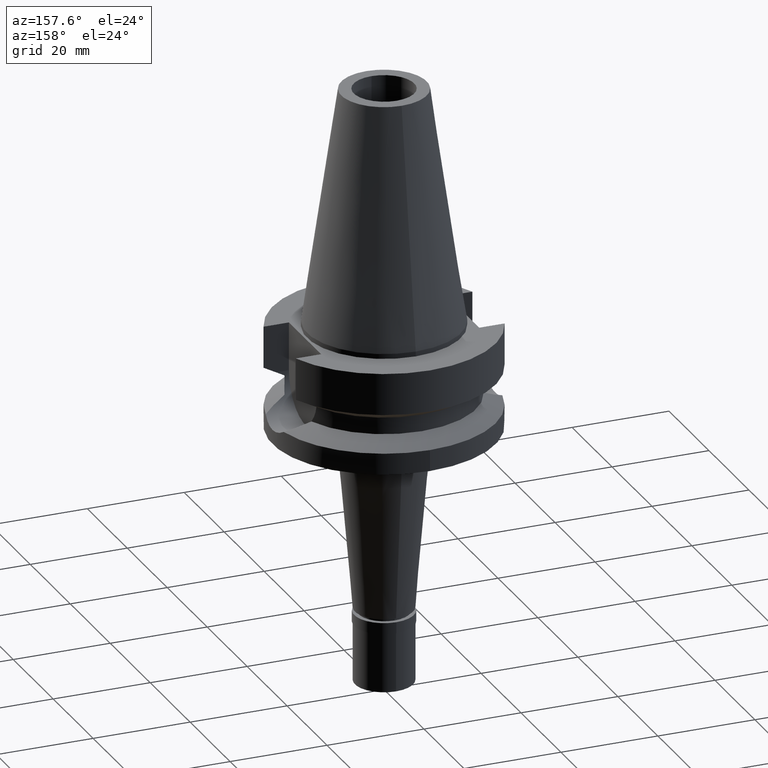
[diagram: clean part render]
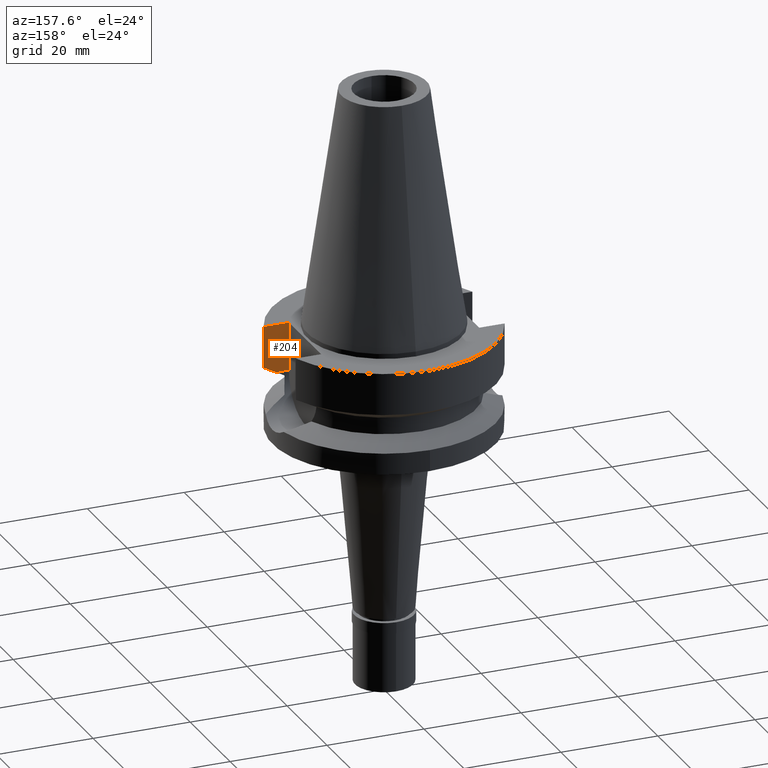
[diagram: same view with one face highlighted and labeled with its STEP entity id]
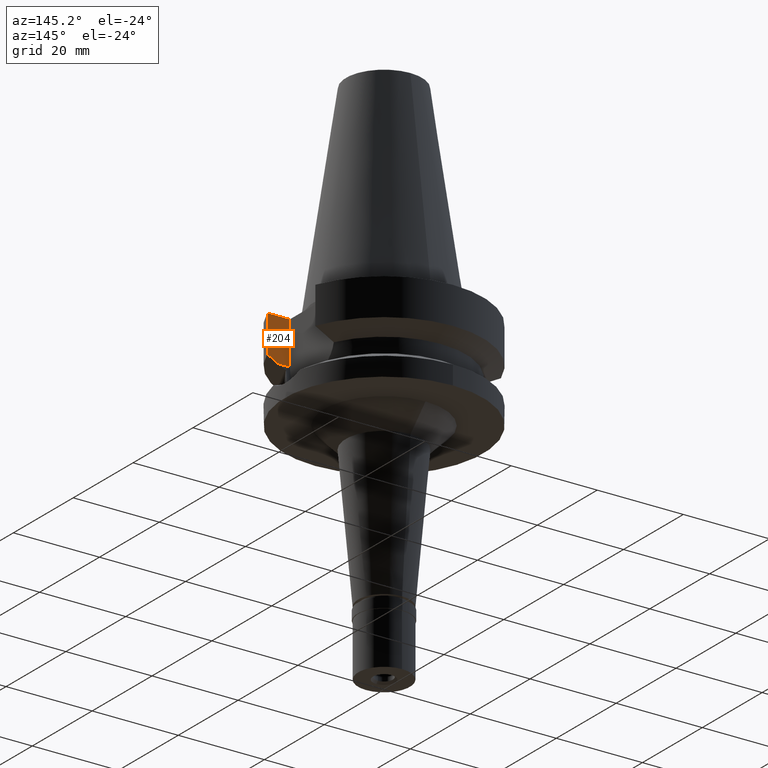
[diagram: same view with one face highlighted and labeled with its STEP entity id]
A machine part, auxiliary view. The second image highlights one B-rep face of the part: STEP entity #204.
A second angle (auxiliary view) of the same face is appended — the face is thin or edge-on in the first view.
In plain terms, the highlighted planar face has unit normal (0, -1, 0).
Its self-contained STEP definition (entity closure, byte-faithful):
#4 = VERTEX_POINT ( 'NONE', #1086 ) ;
#102 = VERTEX_POINT ( 'NONE', #611 ) ;
#204 = ADVANCED_FACE ( 'NONE', ( #1551 ), #2470, .F. ) ;
#210 = CARTESIAN_POINT ( 'NONE',  ( 18.96736186693999926, -8.050001277873001015, -10.94999977540000025 ) ) ;
#271 = VERTEX_POINT ( 'NONE', #1796 ) ;
#381 = CARTESIAN_POINT ( 'NONE',  ( 21.54524309446999908, -8.050000000000000711, -1.000000000000000000 ) ) ;
#505 = ORIENTED_EDGE ( 'NONE', *, *, #2167, .T. ) ;
#540 = VECTOR ( 'NONE', #1956, 1000.000000000000114 ) ;
#564 = CARTESIAN_POINT ( 'NONE',  ( 18.96736186693999926, -8.050001277873001015, -10.94999977540000025 ) ) ;
#586 = VECTOR ( 'NONE', #2238, 1000.000000000000000 ) ;
#611 = CARTESIAN_POINT ( 'NONE',  ( 21.54524309446999908, -8.050000000002000888, -9.567208369710998639 ) ) ;
#623 = VECTOR ( 'NONE', #1792, 1000.000000000000114 ) ;
#663 = VECTOR ( 'NONE', #1694, 1000.000000000000000 ) ;
#727 = EDGE_CURVE ( 'NONE', #1423, #102, #1385, .T. ) ;
#763 = CARTESIAN_POINT ( 'NONE',  ( 21.54524309446999908, -8.050000000002000888, -9.567208369710998639 ) ) ;
#901 = AXIS2_PLACEMENT_3D ( 'NONE', #2481, #1979, #2885 ) ;
#989 = CARTESIAN_POINT ( 'NONE',  ( 18.96736186693999926, -8.050001277873001015, -10.94999977540000025 ) ) ;
#1076 = CARTESIAN_POINT ( 'NONE',  ( 16.29999999999999716, -8.050000000000000711, -10.94999999999999929 ) ) ;
#1086 = CARTESIAN_POINT ( 'NONE',  ( 16.29999999999999716, -8.050000000000000711, -10.94999999999999929 ) ) ;
#1125 = EDGE_CURVE ( 'NONE', #1423, #4, #2918, .T. ) ;
#1154 = ORIENTED_EDGE ( 'NONE', *, *, #1982, .T. ) ;
#1385 = B_SPLINE_CURVE_WITH_KNOTS ( 'NONE', 3,
 ( #989, #1634, #2809, #763 ),
 .UNSPECIFIED., .F., .F.,
 ( 4, 4 ),
 ( 0.0000000000000000000, 1.000000000000000000 ),
 .UNSPECIFIED. ) ;
#1423 = VERTEX_POINT ( 'NONE', #564 ) ;
#1551 = FACE_OUTER_BOUND ( 'NONE', #1795, .T. ) ;
#1634 = CARTESIAN_POINT ( 'NONE',  ( 19.78176446227738339, -8.050001299918164932, -10.51717305795229151 ) ) ;
#1694 = DIRECTION ( 'NONE',  ( 1.000000000000000000, -9.347030801892000173E-14, 0.0000000000000000000 ) ) ;
#1767 = LINE ( 'NONE', #381, #540 ) ;
#1792 = DIRECTION ( 'NONE',  ( -0.9999999999998816502, 4.790775581495907912E-07, -8.420253777260848103E-08 ) ) ;
#1795 = EDGE_LOOP ( 'NONE', ( #2095, #2598, #1154, #505, #2112 ) ) ;
#1796 = CARTESIAN_POINT ( 'NONE',  ( 21.54524309446999908, -8.050000000000000711, -1.000000000000000000 ) ) ;
#1956 = DIRECTION ( 'NONE',  ( -9.134800745262689569E-08, -2.444862503416914398E-07, -0.9999999999999659162 ) ) ;
#1979 = DIRECTION ( 'NONE',  ( 0.0000000000000000000, -1.000000000000000000, 0.0000000000000000000 ) ) ;
#1982 = EDGE_CURVE ( 'NONE', #2213, #271, #2194, .T. ) ;
#2095 = ORIENTED_EDGE ( 'NONE', *, *, #1125, .T. ) ;
#2112 = ORIENTED_EDGE ( 'NONE', *, *, #727, .F. ) ;
#2151 = CARTESIAN_POINT ( 'NONE',  ( 16.29999999999999716, -8.050000000000000711, -1.000000000000000000 ) ) ;
#2167 = EDGE_CURVE ( 'NONE', #271, #102, #1767, .T. ) ;
#2194 = LINE ( 'NONE', #2151, #663 ) ;
#2213 = VERTEX_POINT ( 'NONE', #2293 ) ;
#2238 = DIRECTION ( 'NONE',  ( 0.0000000000000000000, 0.0000000000000000000, 1.000000000000000000 ) ) ;
#2244 = LINE ( 'NONE', #1076, #586 ) ;
#2293 = CARTESIAN_POINT ( 'NONE',  ( 16.29999999999999716, -8.050000000000000711, -1.000000000000000000 ) ) ;
#2470 = PLANE ( 'NONE',  #901 ) ;
#2481 = CARTESIAN_POINT ( 'NONE',  ( 16.29999999999999716, -8.050000000000000711, -1.000000000000000000 ) ) ;
#2598 = ORIENTED_EDGE ( 'NONE', *, *, #2714, .T. ) ;
#2714 = EDGE_CURVE ( 'NONE', #4, #2213, #2244, .T. ) ;
#2809 = CARTESIAN_POINT ( 'NONE',  ( 20.64101735201231591, -8.050004185258069711, -10.05624233374762966 ) ) ;
#2885 = DIRECTION ( 'NONE',  ( 0.0000000000000000000, 0.0000000000000000000, -1.000000000000000000 ) ) ;
#2918 = LINE ( 'NONE', #210, #623 ) ;